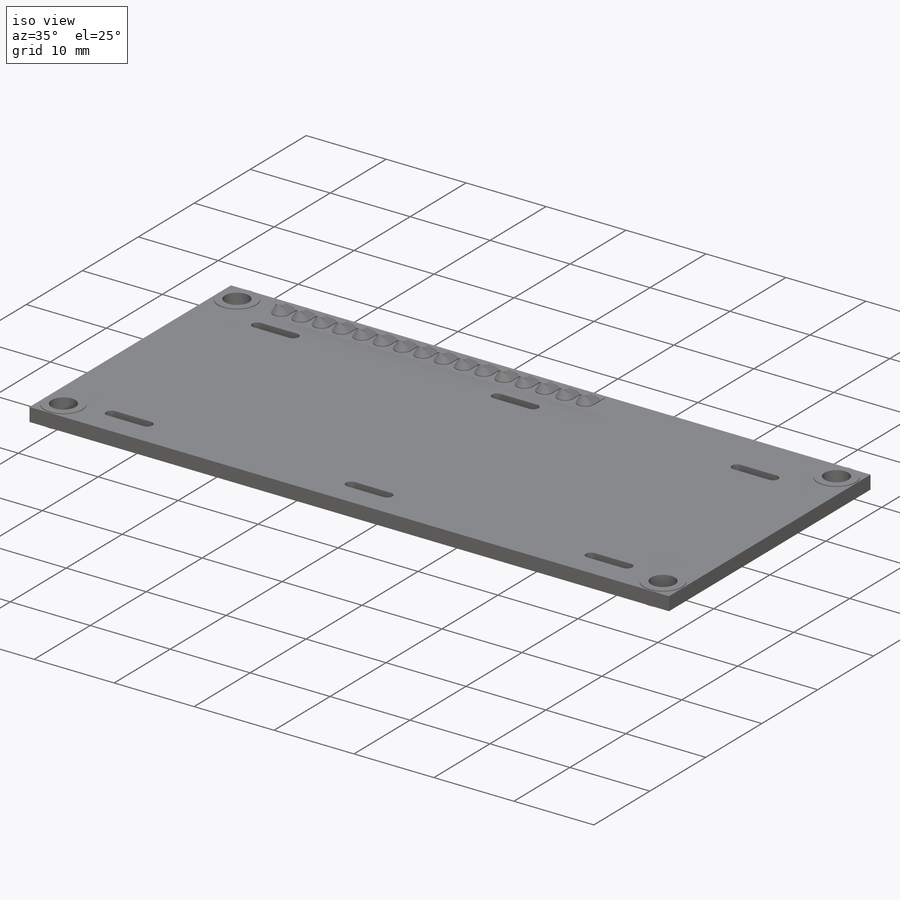
[diagram: iso view]
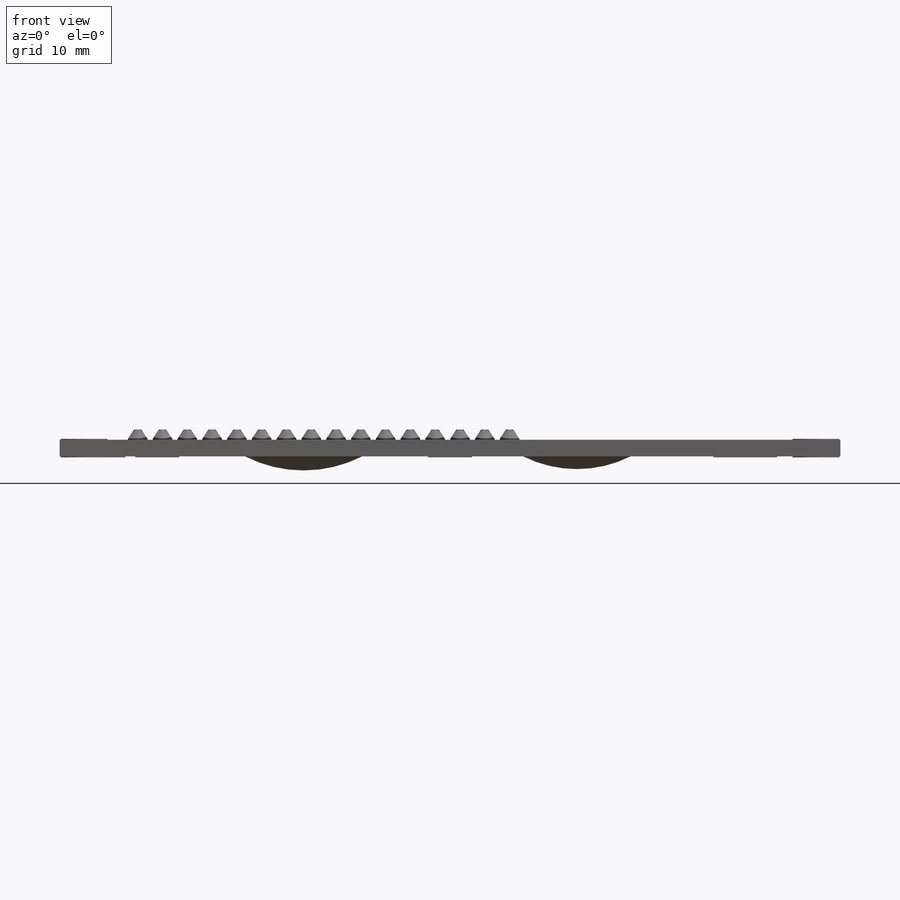
[diagram: front view]
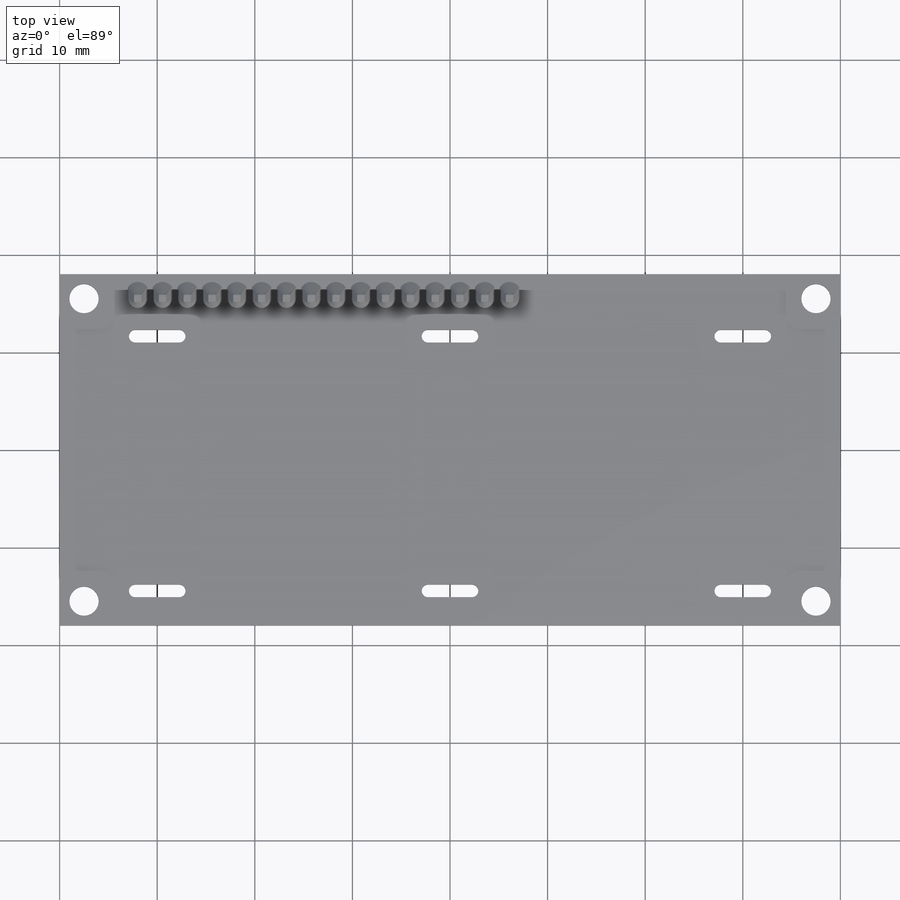
[diagram: top view]
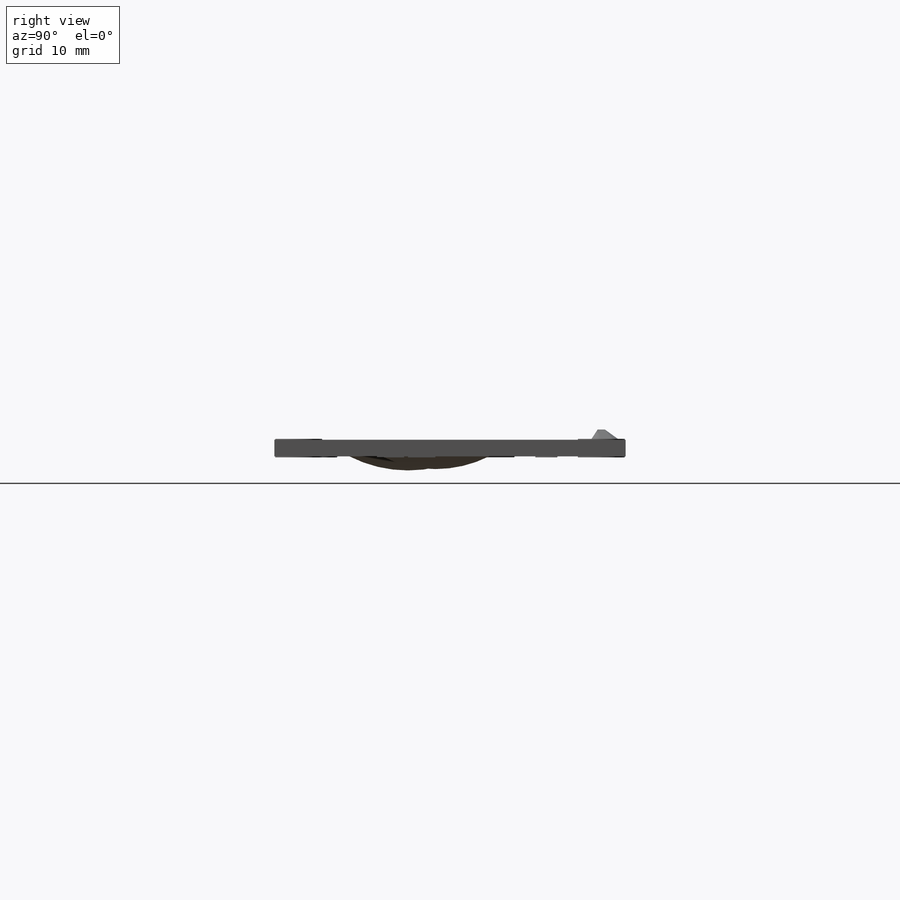
[diagram: right view]
SOLIDWORKS PART (.sldprt)
format: sldprt  version: not decoded by parser v0  size: 1,584,640 bytes
history: native  units: mm
features: sketch x15, extrude x8, fillet x4, cut_extrude x3, plane x3, revolve x2, material x1, pattern_linear x1 (+11 scaffold rows collapsed)
feature tree (48):
  scaffold x11  (default folders/planes/origin — collapsed)
  material  "PVC Rigid"
  sketch  "Sketch1"  dims[D5=3.0mm D1=80.0mm D2=40.0mm D3=18.0mm D4=36.0mm D6=75.0mm D7=31.0mm D8=15.5mm D9=37.5mm]
  extrude  "Boss-Extrude1"  Depth=1.7mm
  sketch  "Sketch2"  dims[c1.D3=~1.06066mm c1.D1=0.75mm c1.D2=2.5mm c2.D3=8.0mm]
  cut_extrude  "Cut-Extrude2"  Depth=1.7mm
  sketch  "Sketch3"  dims[D1=2.0mm D2=2.0mm]
  extrude  "Boss-Extrude2"  Depth=0.1mm
  sketch  "Sketch4"  dims[D1=1.2mm D2=0.5mm]
  plane  "Plane1"  Offset=2.75mm
  sketch  "Sketch5"  dims[D1=0.75mm]
  pattern_linear  "LPattern1"  Count1=16 Count2=1 Spacing1=2.54mm Spacing2=10mm
  sketch  "Sketch6"  dims[D1=1.3mm D2=24.8mm D3=31.8mm D4=4.5mm D5=30.0mm D6=30.0mm]
  cut_extrude  "Cut-Extrude3"  Depth=10mm
  sketch  "Sketch7"  dims[D1=~3.535534mm]
  extrude  "Boss-Extrude3"  Depth=0.1mm
  sketch  "Sketch8"  dims[D1=4.8mm]
  extrude  "Boss-Extrude4"  Depth=0.1mm
  sketch  "Sketch10"  dims[c1.D1=15.3mm c1.D2=5.3mm c1.D3=0.3mm c1.D4=0.3mm c1.D5=0.3mm c1.D6=0.3mm c1.D7=0.3mm c1.D8=8.7mm c1.D9=4.6mm c1.D10=1.0mm c1.D11=0.3mm c1.D12=0.3mm c1.D13=0.3mm c1.D14=0.3mm c1.D15=1.0mm c2.D13=0.3mm c2.D14=2.8mm c2.D16=6.5mm c2.D17=6.5mm c2.D18=10.5mm c2.D19=6.0mm]
  extrude  "Boss-Extrude5"  Depth=0.1mm
  plane  "Plane2"  Offset=13mm
  plane  "Plane3"  Offset=15mm
  sketch  "Sketch12"  dims[D1=1.3mm D2=11.0mm D3=1.5mm]
  revolve  "Revolve1"  Angle=360deg
  sketch  "Sketch13"  dims[D1=1.44mm D2=12.0mm D3=4.3mm]
  revolve  "Revolve2"  Angle=360deg
  sketch  "Sketch14"  dims[D1=2.75mm D2=13.75mm D3=3.2mm D4=14.75mm]
  cut_extrude  "Cut-Extrude4"  Depth=0.05mm
  sketch  "Sketch15"  dims[D1=0.4mm D2=0.8mm]
  extrude  "Boss-Extrude6"  Depth=0.05mm
  sketch  "Sketch16"  dims[D1=5.0mm D2=12.0mm D3=0.25mm D4=3.0mm D5=13.75mm]
  extrude  "Boss-Extrude7"  Depth=0.05mm
  sketch  "Sketch17"  dims[D1=4.3mm D2=11.3mm D3=0.35mm D4=0.35mm D5=0.2mm D6=2.6mm]
  extrude  "Boss-Extrude8"  Depth=1mm
  fillet  "Fillet3"  Radius=1.5mm
  fillet  "Fillet4"  Radius=1mm
  fillet  "Fillet5"  Radius=1mm
  fillet  "Fillet6"  Radius=0.1mm
decode coverage: 33 of 33 modeling features carry decoded parameters
note: ~ marks probable driven/reference dimensions
note: suppression state not decoded; provenance and decode notes live in map.json
